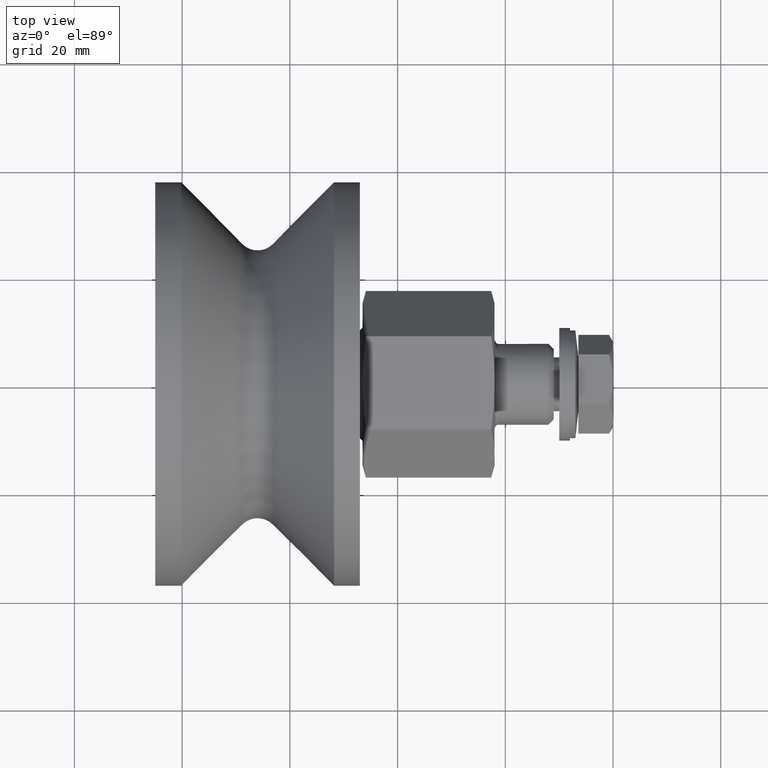
[diagram: clean part render]
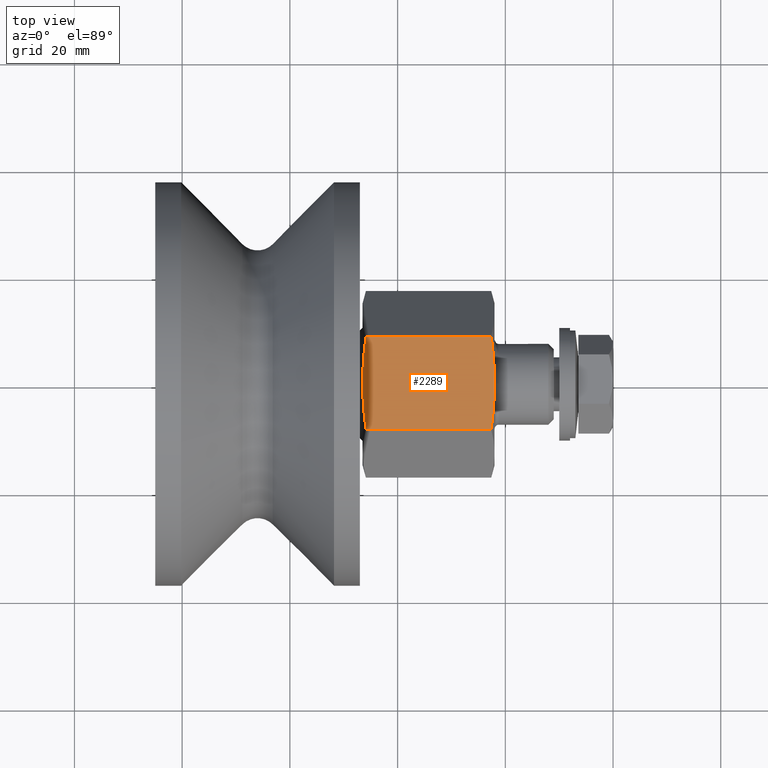
[diagram: same view with one face highlighted and labeled with its STEP entity id]
A machine part, top view. The second image highlights one B-rep face of the part: STEP entity #2289.
In plain terms, the highlighted planar face has unit normal (0, -0, 1).
Its self-contained STEP definition (entity closure, byte-faithful):
#150=(
BOUNDED_CURVE()
B_SPLINE_CURVE(2,(#3729,#3730,#3731),.UNSPECIFIED.,.F.,.F.)
B_SPLINE_CURVE_WITH_KNOTS((3,3),(0.,0.848323214398153),.UNSPECIFIED.)
CURVE()
GEOMETRIC_REPRESENTATION_ITEM()
RATIONAL_B_SPLINE_CURVE((1.,1.04910889997977,1.03536115959658))
REPRESENTATION_ITEM('')
);
#165=(
BOUNDED_CURVE()
B_SPLINE_CURVE(2,(#3802,#3803,#3804),.UNSPECIFIED.,.F.,.F.)
B_SPLINE_CURVE_WITH_KNOTS((3,3),(0.477239833382626,1.32556304778078),
 .UNSPECIFIED.)
CURVE()
GEOMETRIC_REPRESENTATION_ITEM()
RATIONAL_B_SPLINE_CURVE((1.03536115959658,1.04910889997978,1.))
REPRESENTATION_ITEM('')
);
#166=(
BOUNDED_CURVE()
B_SPLINE_CURVE(2,(#3807,#3808,#3809),.UNSPECIFIED.,.F.,.F.)
B_SPLINE_CURVE_WITH_KNOTS((3,3),(0.,0.84832321439816),.UNSPECIFIED.)
CURVE()
GEOMETRIC_REPRESENTATION_ITEM()
RATIONAL_B_SPLINE_CURVE((1.,1.04910889997978,1.03536115959658))
REPRESENTATION_ITEM('')
);
#172=(
BOUNDED_CURVE()
B_SPLINE_CURVE(2,(#3832,#3833,#3834),.UNSPECIFIED.,.F.,.F.)
B_SPLINE_CURVE_WITH_KNOTS((3,3),(0.477239833382627,1.32556304778078),
 .UNSPECIFIED.)
CURVE()
GEOMETRIC_REPRESENTATION_ITEM()
RATIONAL_B_SPLINE_CURVE((1.03536115959658,1.04910889997977,1.))
REPRESENTATION_ITEM('')
);
#278=PLANE('',#2685);
#314=LINE('',#3669,#402);
#330=LINE('',#3846,#418);
#334=LINE('',#3854,#422);
#336=LINE('',#3859,#424);
#402=VECTOR('',#2961,10.);
#418=VECTOR('',#3069,10.);
#422=VECTOR('',#3079,10.);
#424=VECTOR('',#3087,10.);
#544=FACE_OUTER_BOUND('',#685,.T.);
#685=EDGE_LOOP('',(#1705,#1706,#1707,#1708,#1709,#1710,#1711,#1712));
#985=VERTEX_POINT('',#3666);
#986=VERTEX_POINT('',#3668);
#1006=VERTEX_POINT('',#3727);
#1007=VERTEX_POINT('',#3728);
#1023=VERTEX_POINT('',#3798);
#1024=VERTEX_POINT('',#3806);
#1027=VERTEX_POINT('',#3830);
#1028=VERTEX_POINT('',#3831);
#1221=EDGE_CURVE('',#985,#986,#314,.T.);
#1248=EDGE_CURVE('',#1006,#1007,#150,.T.);
#1268=EDGE_CURVE('',#1023,#986,#165,.T.);
#1269=EDGE_CURVE('',#985,#1024,#166,.T.);
#1275=EDGE_CURVE('',#1027,#1028,#172,.T.);
#1283=EDGE_CURVE('',#1006,#1028,#330,.T.);
#1288=EDGE_CURVE('',#1007,#1023,#334,.T.);
#1290=EDGE_CURVE('',#1027,#1024,#336,.T.);
#1705=ORIENTED_EDGE('',*,*,#1275,.T.);
#1706=ORIENTED_EDGE('',*,*,#1283,.F.);
#1707=ORIENTED_EDGE('',*,*,#1248,.T.);
#1708=ORIENTED_EDGE('',*,*,#1288,.T.);
#1709=ORIENTED_EDGE('',*,*,#1268,.T.);
#1710=ORIENTED_EDGE('',*,*,#1221,.F.);
#1711=ORIENTED_EDGE('',*,*,#1269,.T.);
#1712=ORIENTED_EDGE('',*,*,#1290,.F.);
#2289=ADVANCED_FACE('',(#544),#278,.T.);
#2685=AXIS2_PLACEMENT_3D('',#3860,#3088,#3089);
#2961=DIRECTION('',(0.,-1.,-2.56395024851142E-16));
#3069=DIRECTION('',(0.,1.,2.56395024851142E-16));
#3079=DIRECTION('',(1.,0.,0.));
#3087=DIRECTION('',(1.,0.,0.));
#3088=DIRECTION('center_axis',(0.,-2.56395024851142E-16,1.));
#3089=DIRECTION('ref_axis',(0.,-1.,-2.56395024851142E-16));
#3666=CARTESIAN_POINT('',(58.,0.784641862145884,15.));
#3668=CARTESIAN_POINT('',(58.,-0.784641862145892,15.));
#3669=CARTESIAN_POINT('',(58.,11.2051270189222,15.));
#3727=CARTESIAN_POINT('',(33.5,-0.784641862145892,15.));
#3728=CARTESIAN_POINT('',(34.1162831425916,-8.66025403784439,15.));
#3729=CARTESIAN_POINT('Ctrl Pts',(33.5,-0.784641862145913,15.));
#3730=CARTESIAN_POINT('Ctrl Pts',(33.5511981876489,-4.4424025129668,15.));
#3731=CARTESIAN_POINT('Ctrl Pts',(34.1162831425916,-8.66025403784439,15.));
#3798=CARTESIAN_POINT('',(57.3837168574084,-8.66025403784439,15.));
#3802=CARTESIAN_POINT('Ctrl Pts',(57.3837168574084,-8.66025403784439,15.));
#3803=CARTESIAN_POINT('Ctrl Pts',(57.9488018123511,-4.44240251296679,15.));
#3804=CARTESIAN_POINT('Ctrl Pts',(58.,-0.784641862145852,15.));
#3806=CARTESIAN_POINT('',(57.3837168574084,8.66025403784439,15.));
#3807=CARTESIAN_POINT('Ctrl Pts',(58.,0.784641862145845,15.));
#3808=CARTESIAN_POINT('Ctrl Pts',(57.9488018123511,4.44240251296678,15.));
#3809=CARTESIAN_POINT('Ctrl Pts',(57.3837168574084,8.66025403784439,15.));
#3830=CARTESIAN_POINT('',(34.1162831425916,8.66025403784439,15.));
#3831=CARTESIAN_POINT('',(33.5,0.784641862145884,15.));
#3832=CARTESIAN_POINT('Ctrl Pts',(34.1162831425916,8.66025403784439,15.));
#3833=CARTESIAN_POINT('Ctrl Pts',(33.5511981876489,4.44240251296679,15.));
#3834=CARTESIAN_POINT('Ctrl Pts',(33.5,0.784641862145906,15.));
#3846=CARTESIAN_POINT('',(33.5,11.9551270189222,15.));
#3854=CARTESIAN_POINT('',(0.,-8.66025403784439,15.));
#3859=CARTESIAN_POINT('',(0.,8.66025403784439,15.));
#3860=CARTESIAN_POINT('Origin',(0.,8.66025403784439,15.));